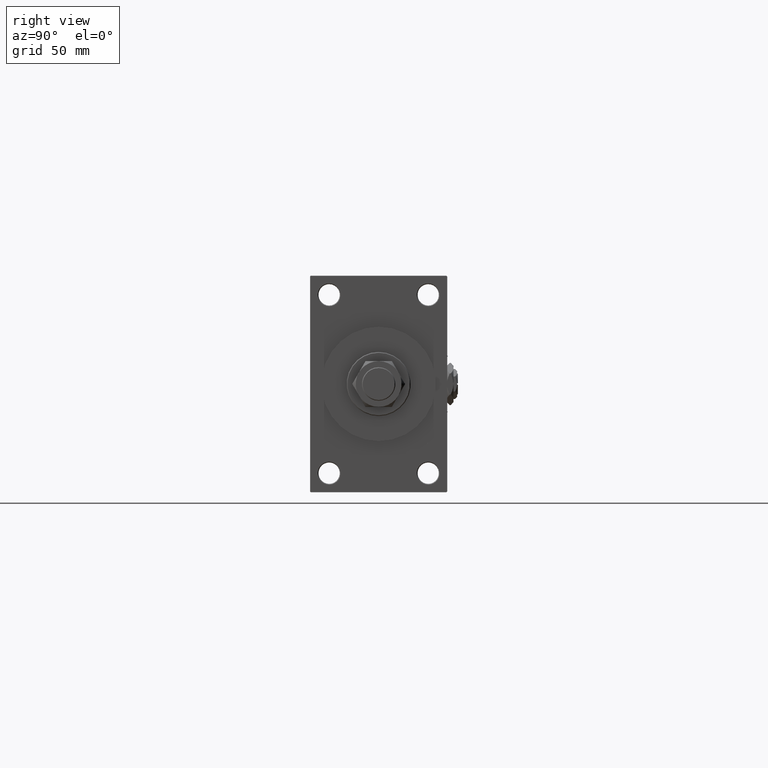
[diagram: clean part render]
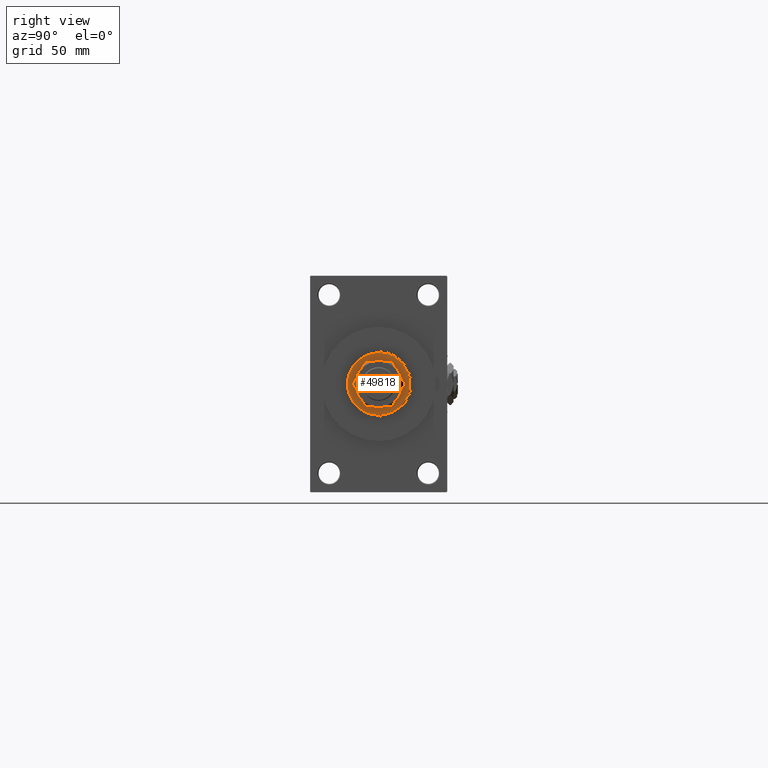
[diagram: same view with one face highlighted and labeled with its STEP entity id]
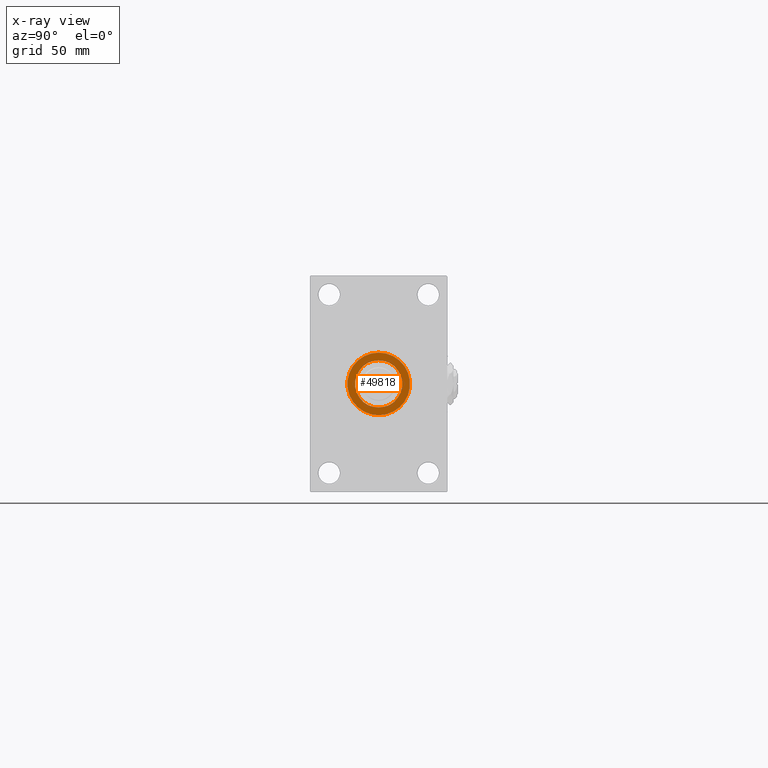
[diagram: x-ray of the same camera — body ghosted, the highlighted face saturated]
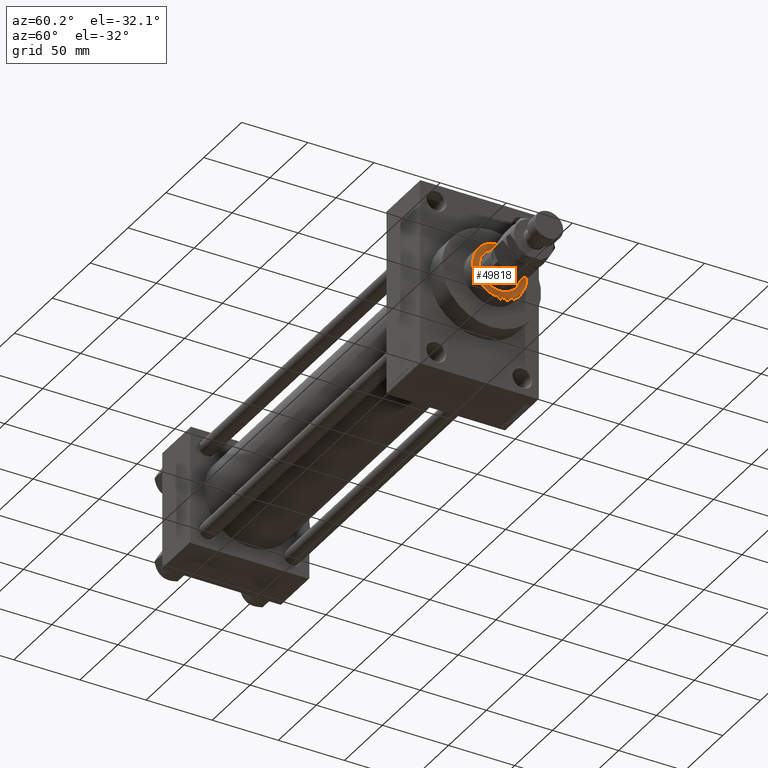
[diagram: same view with one face highlighted and labeled with its STEP entity id]
A machine part, right view. The second image highlights one B-rep face of the part: STEP entity #49818.
The next image is the same camera in x-ray: the body ghosted, the highlighted face saturated — about 0% of this face is hidden behind the body in this view.
A second angle (auxiliary view) of the same face is appended — the face is thin or edge-on in the first view.
In plain terms, the highlighted planar face has unit normal (1, -0, -0).
Its self-contained STEP definition (entity closure, byte-faithful):
#1856 = CIRCLE ( 'NONE', #22016, 20.50000000000001776 ) ;
#6282 = VERTEX_POINT ( 'NONE', #19625 ) ;
#9901 = AXIS2_PLACEMENT_3D ( 'NONE', #39116, #50455, #46500 ) ;
#11055 = EDGE_LOOP ( 'NONE', ( #32570, #25752 ) ) ;
#11238 = DIRECTION ( 'NONE',  ( 0.000000000000000000, 0.000000000000000000, 1.000000000000000000 ) ) ;
#15474 = EDGE_LOOP ( 'NONE', ( #29384, #29106 ) ) ;
#15998 = CIRCLE ( 'NONE', #22725, 20.50000000000001776 ) ;
#16226 = DIRECTION ( 'NONE',  ( 1.000000000000000000, 0.000000000000000000, 0.000000000000000000 ) ) ;
#17273 = DIRECTION ( 'NONE',  ( 0.000000000000000000, 0.000000000000000000, 1.000000000000000000 ) ) ;
#17793 = CARTESIAN_POINT ( 'NONE',  ( 20.50000000000001776, 2.541142108230759057E-15, 54.26000000000000512 ) ) ;
#18452 = EDGE_CURVE ( 'NONE', #21911, #20490, #15998, .T. ) ;
#19625 = CARTESIAN_POINT ( 'NONE',  ( -15.50000000000000000, 1.898202538678397557E-15, 54.26000000000000512 ) ) ;
#20490 = VERTEX_POINT ( 'NONE', #17793 ) ;
#21911 = VERTEX_POINT ( 'NONE', #34015 ) ;
#22016 = AXIS2_PLACEMENT_3D ( 'NONE', #43601, #11238, #48309 ) ;
#22725 = AXIS2_PLACEMENT_3D ( 'NONE', #27554, #32034, #16226 ) ;
#23075 = FACE_BOUND ( 'NONE', #11055, .T. ) ;
#23334 = FACE_OUTER_BOUND ( 'NONE', #15474, .T. ) ;
#23916 = CARTESIAN_POINT ( 'NONE',  ( 15.50000000000000000, 0.000000000000000000, 54.26000000000000512 ) ) ;
#25752 = ORIENTED_EDGE ( 'NONE', *, *, #41729, .F. ) ;
#26065 = EDGE_CURVE ( 'NONE', #37151, #6282, #34466, .T. ) ;
#27554 = CARTESIAN_POINT ( 'NONE',  ( 0.000000000000000000, 0.000000000000000000, 54.26000000000000512 ) ) ;
#29106 = ORIENTED_EDGE ( 'NONE', *, *, #30560, .T. ) ;
#29384 = ORIENTED_EDGE ( 'NONE', *, *, #18452, .T. ) ;
#29412 = AXIS2_PLACEMENT_3D ( 'NONE', #41218, #17273, #41747 ) ;
#30560 = EDGE_CURVE ( 'NONE', #20490, #21911, #1856, .T. ) ;
#31546 = CIRCLE ( 'NONE', #48354, 15.50000000000000000 ) ;
#32034 = DIRECTION ( 'NONE',  ( 0.000000000000000000, 0.000000000000000000, 1.000000000000000000 ) ) ;
#32570 = ORIENTED_EDGE ( 'NONE', *, *, #26065, .F. ) ;
#34015 = CARTESIAN_POINT ( 'NONE',  ( -20.50000000000001776, 0.000000000000000000, 54.26000000000000512 ) ) ;
#34466 = CIRCLE ( 'NONE', #29412, 15.50000000000000000 ) ;
#36267 = DIRECTION ( 'NONE',  ( 1.000000000000000000, 0.000000000000000000, 0.000000000000000000 ) ) ;
#36521 = DIRECTION ( 'NONE',  ( 0.000000000000000000, 0.000000000000000000, 1.000000000000000000 ) ) ;
#37050 = CARTESIAN_POINT ( 'NONE',  ( 0.000000000000000000, 0.000000000000000000, 54.26000000000000512 ) ) ;
#37151 = VERTEX_POINT ( 'NONE', #23916 ) ;
#39116 = CARTESIAN_POINT ( 'NONE',  ( 0.000000000000000000, 0.000000000000000000, 54.26000000000000512 ) ) ;
#39376 = PLANE ( 'NONE',  #9901 ) ;
#41218 = CARTESIAN_POINT ( 'NONE',  ( 0.000000000000000000, 0.000000000000000000, 54.26000000000000512 ) ) ;
#41729 = EDGE_CURVE ( 'NONE', #6282, #37151, #31546, .T. ) ;
#41747 = DIRECTION ( 'NONE',  ( 1.000000000000000000, 0.000000000000000000, 0.000000000000000000 ) ) ;
#43601 = CARTESIAN_POINT ( 'NONE',  ( 0.000000000000000000, 0.000000000000000000, 54.26000000000000512 ) ) ;
#46500 = DIRECTION ( 'NONE',  ( 1.000000000000000000, 0.000000000000000000, -0.000000000000000000 ) ) ;
#48309 = DIRECTION ( 'NONE',  ( 1.000000000000000000, 0.000000000000000000, 0.000000000000000000 ) ) ;
#48354 = AXIS2_PLACEMENT_3D ( 'NONE', #37050, #36521, #36267 ) ;
#49818 = ADVANCED_FACE ( 'NONE', ( #23075, #23334 ), #39376, .T. ) ;
#50455 = DIRECTION ( 'NONE',  ( 0.000000000000000000, 0.000000000000000000, 1.000000000000000000 ) ) ;